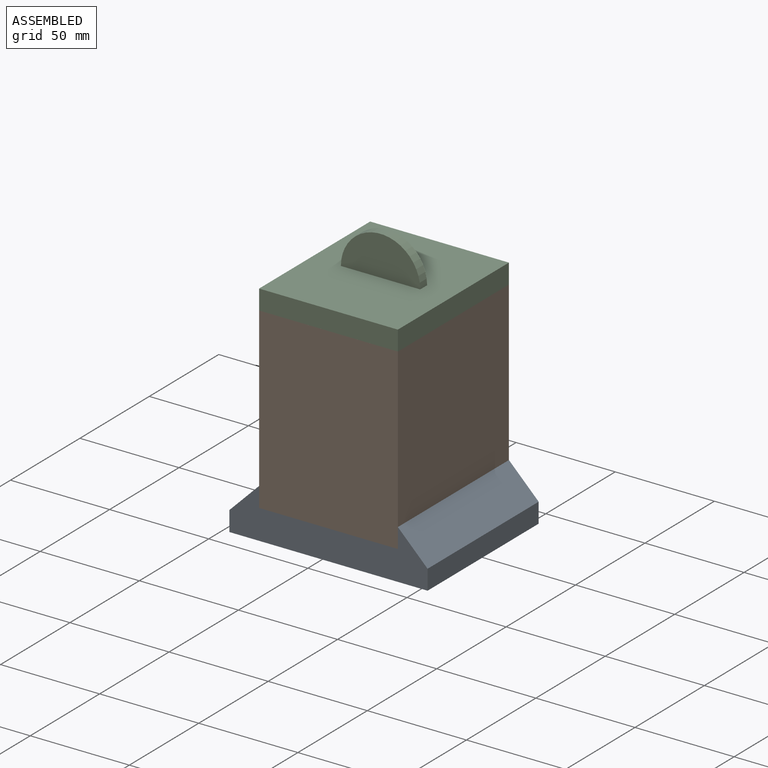
[diagram: assembled view]
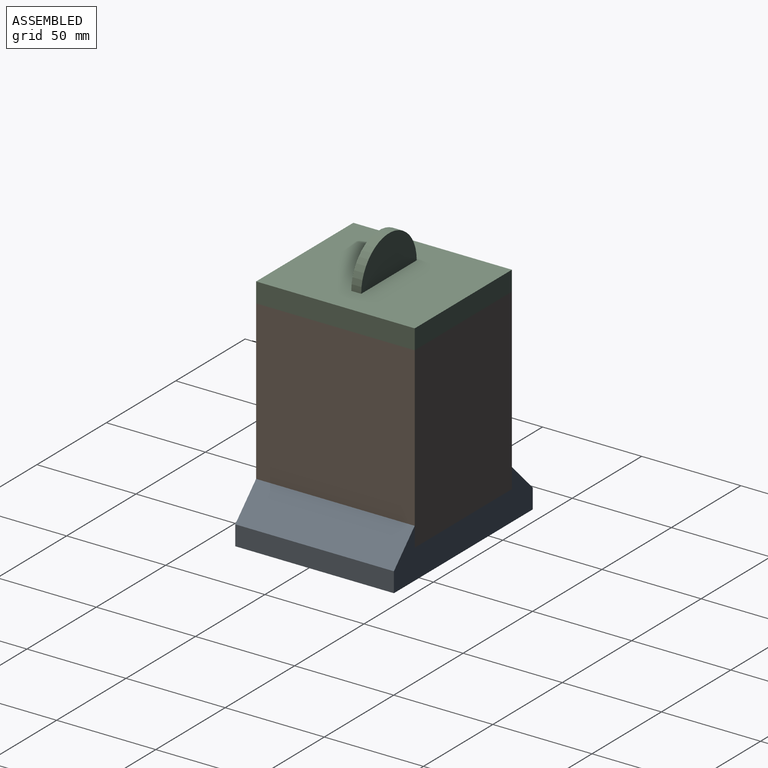
[diagram: assembled view, second angle]
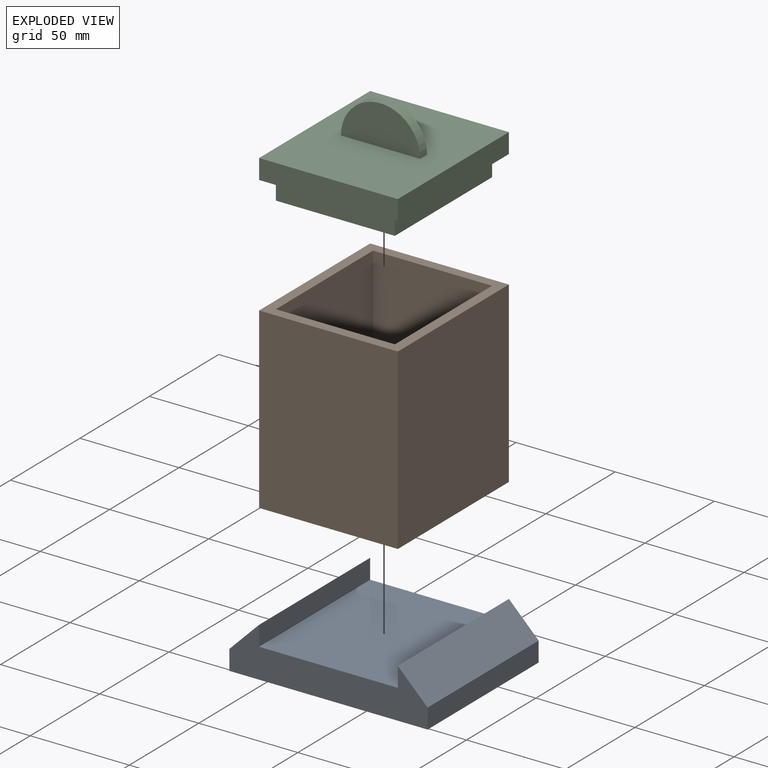
[diagram: exploded view]
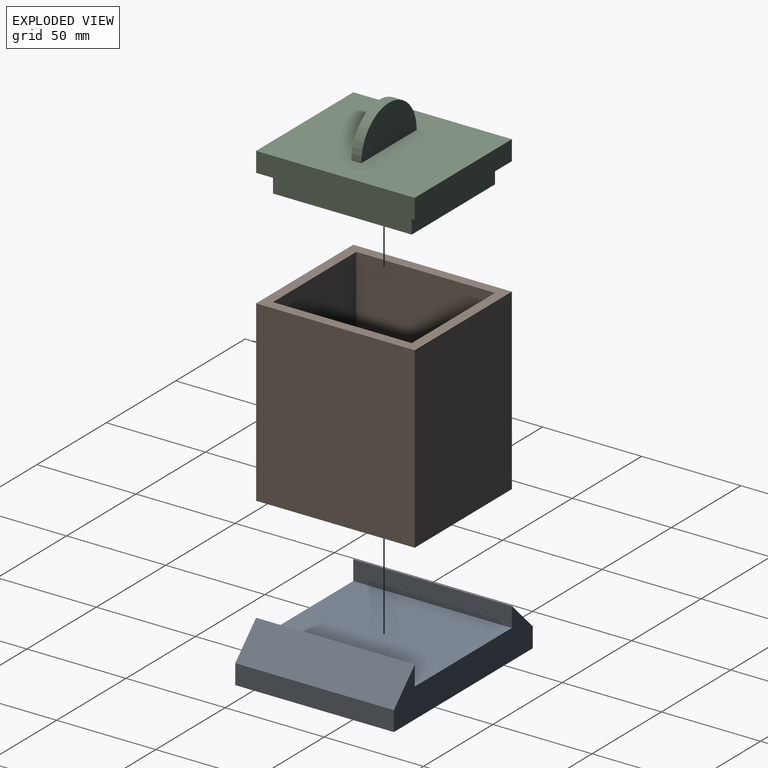
[diagram: exploded view, second angle]
ASSEMBLY  parts=3 mates=2
PART A: 10 faces, bbox 100x80x25 mm
  f0: plane 100x25mm, normal (0,-1,0), area 1575mm2, adj f1,f2,f3,f5,f6,f7,f8,f9
  f1: plane 80x10mm, normal (1,0,0), area 800mm2, adj f0,f3,f4,f5
  f2: plane 80x10mm, normal (-1,0,0), area 800mm2, adj f0,f3,f4,f6
  f3: plane 100x80mm, normal (0,0,-1), area 8000mm2, adj f0,f1,f2,f4
  f4: plane 100x25mm, normal (0,1,0), area 1575mm2, adj f1,f2,f3,f5,f6,f7,f8,f9
  f5: plane 80x15mm, normal (0.71,0,0.71), area 1697.1mm2, adj f0,f1,f4,f7
  f6: plane 80x15mm, normal (-0.71,0,0.71), area 1697.1mm2, adj f0,f2,f4,f8
  f7: plane 80x10mm, normal (-1,0,0), area 800mm2, adj f0,f4,f5,f9
  f8: plane 80x10mm, normal (1,0,0), area 800mm2, adj f0,f4,f6,f9
  f9: plane 80x70mm, normal (0,0,1), area 5600mm2, adj f0,f4,f7,f8
PART B: 11 faces, bbox 70x80x90 mm
  f0: plane 80x70mm, normal (0,0,1), area 1400mm2, adj f1,f2,f4,f5,f6,f7,f8,f9
  f1: plane 90x80mm, normal (1,0,0), area 7200mm2, adj f0,f3,f4,f5
  f2: plane 90x80mm, normal (-1,0,0), area 7200mm2, adj f0,f3,f4,f5
  f3: plane 80x70mm, normal (0,0,-1), area 5600mm2, adj f1,f2,f4,f5
  f4: plane 90x70mm, normal (0,-1,0), area 6300mm2, adj f0,f1,f2,f3
  f5: plane 90x70mm, normal (0,1,0), area 6300mm2, adj f0,f1,f2,f3
  f6: plane 85x70mm, normal (-1,0,0), area 5950mm2, adj f0,f7,f9,f10
  f7: plane 85x60mm, normal (0,-1,0), area 5100mm2, adj f0,f6,f8,f10
  f8: plane 85x70mm, normal (1,0,0), area 5950mm2, adj f0,f7,f9,f10
  f9: plane 85x60mm, normal (0,1,0), area 5100mm2, adj f0,f6,f8,f10
  f10: plane 70x60mm, normal (0,0,1), area 4200mm2, adj f6,f7,f8,f9
PART C: 14 faces, bbox 70x80x40 mm
  f0: plane 80x70mm, normal (0,0,-1), area 1400mm2, adj f1,f3,f4,f5,f6,f7,f8,f9
  f1: plane 80x10mm, normal (1,0,0), area 800mm2, adj f0,f2,f4,f5
  f2: plane 80x70mm, normal (0,0,1), area 5400mm2, adj f1,f3,f4,f5,f11,f12,f13
  f3: plane 80x10mm, normal (-1,0,0), area 800mm2, adj f0,f2,f4,f5
  f4: plane 70x10mm, normal (0,-1,0), area 700mm2, adj f0,f1,f2,f3
  f5: plane 70x10mm, normal (0,1,0), area 700mm2, adj f0,f1,f2,f3
  f6: plane 70x10mm, normal (1,0,0), area 700mm2, adj f0,f7,f9,f10
  f7: plane 60x10mm, normal (0,-1,0), area 600mm2, adj f0,f6,f8,f10
  f8: plane 70x10mm, normal (-1,0,0), area 700mm2, adj f0,f7,f9,f10
  f9: plane 60x10mm, normal (0,1,0), area 600mm2, adj f0,f6,f8,f10
  f10: plane 70x60mm, normal (0,0,-1), area 4200mm2, adj f6,f7,f8,f9
  f11: plane 40x20mm, normal (0,1,0), area 628.3mm2, adj f2,f13
  f12: plane 40x20mm, normal (0,-1,0), area 628.3mm2, adj f2,f13
  f13: cylinder r=20mm len=40mm, axis (0,-1,0), area 314.2mm2, adj f2,f11,f12
PLACE A t=(-15.54,-15.76,-10.18)mm
PLACE B t=(-15.54,-15.76,37.32)mm
PLACE C t=(-15.54,-15.76,87.32)mm
MATE fastened B.f3 <-> A.f9  axis (0,0,-1) through (-15.54,-15.76,-7.68)mm
MATE fastened C.f0 <-> B.f0  axis (0,0,-1) through (-15.54,-55.76,82.32)mm
